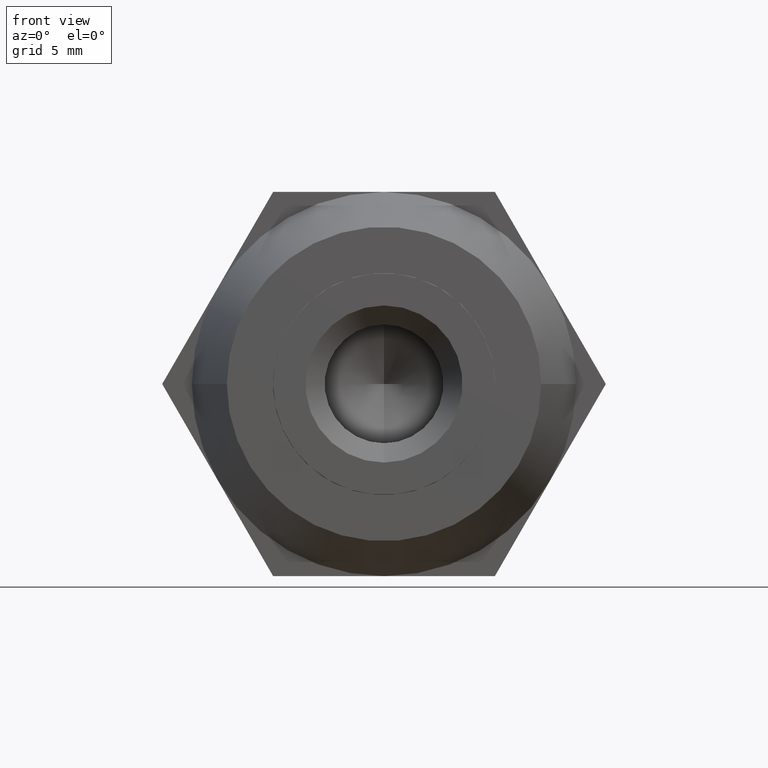
[diagram: clean part render]
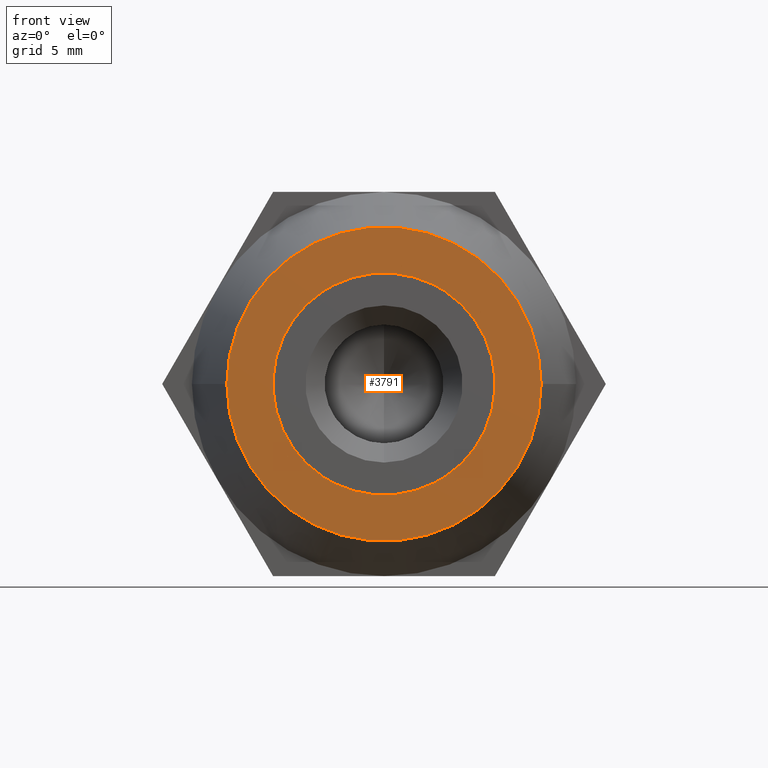
[diagram: same view with one face highlighted and labeled with its STEP entity id]
A machine part, front view. The second image highlights one B-rep face of the part: STEP entity #3791.
In plain terms, the highlighted planar face has unit normal (0, -1, 0).
Its self-contained STEP definition (entity closure, byte-faithful):
#18 = CARTESIAN_POINT ( 'NONE',  ( -2.866252530374845200, -12.50000000000000000, 5.677516748730879700 ) ) ;
#24 = EDGE_CURVE ( 'NONE', #2353, #1094, #2490, .T. ) ;
#61 = CARTESIAN_POINT ( 'NONE',  ( 4.241909236732810000E-015, -12.50000000000000000, 0.0000000000000000000 ) ) ;
#90 = ORIENTED_EDGE ( 'NONE', *, *, #3379, .T. ) ;
#103 = CARTESIAN_POINT ( 'NONE',  ( 4.241909236732810000E-015, -12.50000000000000000, 0.0000000000000000000 ) ) ;
#123 = CIRCLE ( 'NONE', #834, 6.360000000000000300 ) ;
#126 = DIRECTION ( 'NONE',  ( -1.224646799147352000E-016, 1.000000000000000000, -0.0000000000000000000 ) ) ;
#128 = EDGE_CURVE ( 'NONE', #1094, #2252, #2360, .T. ) ;
#129 = EDGE_LOOP ( 'NONE', ( #1279, #1553 ) ) ;
#153 = CARTESIAN_POINT ( 'NONE',  ( 6.349999999999999600, -12.50000000000000000, 3.631579384348879600E-015 ) ) ;
#189 = VERTEX_POINT ( 'NONE', #2188 ) ;
#196 = CARTESIAN_POINT ( 'NONE',  ( 4.241909236732810000E-015, -12.50000000000000000, 0.0000000000000000000 ) ) ;
#212 = CARTESIAN_POINT ( 'NONE',  ( 6.349999999999999600, -12.50000000000000000, 0.3565108693995109900 ) ) ;
#312 = LINE ( 'NONE', #1988, #1150 ) ;
#314 = CIRCLE ( 'NONE', #2002, 6.360000000000000300 ) ;
#316 = DIRECTION ( 'NONE',  ( -1.224646799147352000E-016, 1.000000000000000000, 0.0000000000000000000 ) ) ;
#372 = DIRECTION ( 'NONE',  ( -1.224646799147352000E-016, 1.000000000000000000, -0.0000000000000000000 ) ) ;
#421 = VECTOR ( 'NONE', #2495, 1000.000000000000000 ) ;
#460 = ORIENTED_EDGE ( 'NONE', *, *, #1311, .T. ) ;
#485 = VERTEX_POINT ( 'NONE', #2240 ) ;
#486 = DIRECTION ( 'NONE',  ( -2.365849761790805000E-016, -2.897330338040634900E-032, 1.000000000000000000 ) ) ;
#538 = LINE ( 'NONE', #583, #3513 ) ;
#561 = VERTEX_POINT ( 'NONE', #1717 ) ;
#583 = CARTESIAN_POINT ( 'NONE',  ( -9.924999999999998900, -12.50000000000000000, -1.602146997001215000 ) ) ;
#612 = DIRECTION ( 'NONE',  ( 1.000000000000000000, 0.0000000000000000000, 8.881784197001252300E-016 ) ) ;
#627 = CARTESIAN_POINT ( 'NONE',  ( 4.241909236732810000E-015, -12.50000000000000000, 0.0000000000000000000 ) ) ;
#662 = CARTESIAN_POINT ( 'NONE',  ( 2.866252530374775000, -12.50000000000000000, 5.677516748730930400 ) ) ;
#714 = CIRCLE ( 'NONE', #2518, 6.360000000000000300 ) ;
#745 = EDGE_CURVE ( 'NONE', #2927, #1745, #1898, .T. ) ;
#787 = ORIENTED_EDGE ( 'NONE', *, *, #3128, .T. ) ;
#834 = AXIS2_PLACEMENT_3D ( 'NONE', #61, #372, #612 ) ;
#862 = DIRECTION ( 'NONE',  ( -1.000000000000000000, -1.927470528863119000E-016, 0.0000000000000000000 ) ) ;
#874 = CARTESIAN_POINT ( 'NONE',  ( 6.349999999999999600, -12.50000000000000000, -0.3565108693995079900 ) ) ;
#929 = AXIS2_PLACEMENT_3D ( 'NONE', #2023, #316, #862 ) ;
#995 = AXIS2_PLACEMENT_3D ( 'NONE', #103, #1577, #3632 ) ;
#998 = CARTESIAN_POINT ( 'NONE',  ( 4.241909236732810000E-015, -12.50000000000000000, 0.0000000000000000000 ) ) ;
#1004 = CARTESIAN_POINT ( 'NONE',  ( -8.999999999999996400, -12.50000000000000200, 0.0000000000000000000 ) ) ;
#1025 = CARTESIAN_POINT ( 'NONE',  ( 3.061616997868384600E-015, -12.50000000000000000, 0.0000000000000000000 ) ) ;
#1033 = EDGE_LOOP ( 'NONE', ( #1983, #3580, #3547, #787, #3754, #1663, #2308, #460, #1153, #1515, #90, #1174 ) ) ;
#1092 = DIRECTION ( 'NONE',  ( 1.000000000000000000, 0.0000000000000000000, 0.0000000000000000000 ) ) ;
#1094 = VERTEX_POINT ( 'NONE', #1773 ) ;
#1132 = CARTESIAN_POINT ( 'NONE',  ( -6.349999999999999600, -12.50000000000000000, 0.3565108693993560000 ) ) ;
#1150 = VECTOR ( 'NONE', #2877, 1000.000000000000000 ) ;
#1153 = ORIENTED_EDGE ( 'NONE', *, *, #2712, .T. ) ;
#1174 = ORIENTED_EDGE ( 'NONE', *, *, #3069, .T. ) ;
#1201 = CARTESIAN_POINT ( 'NONE',  ( 4.241909236732810000E-015, -12.50000000000000000, 0.0000000000000000000 ) ) ;
#1224 = DIRECTION ( 'NONE',  ( 1.224646799147352000E-016, -1.000000000000000000, 0.0000000000000000000 ) ) ;
#1279 = ORIENTED_EDGE ( 'NONE', *, *, #1357, .F. ) ;
#1311 = EDGE_CURVE ( 'NONE', #189, #561, #1364, .T. ) ;
#1317 = CIRCLE ( 'NONE', #1363, 6.360000000000000300 ) ;
#1357 = EDGE_CURVE ( 'NONE', #2435, #485, #2555, .T. ) ;
#1363 = AXIS2_PLACEMENT_3D ( 'NONE', #998, #126, #3319 ) ;
#1364 = CIRCLE ( 'NONE', #995, 6.360000000000000300 ) ;
#1504 = VERTEX_POINT ( 'NONE', #2789 ) ;
#1515 = ORIENTED_EDGE ( 'NONE', *, *, #2075, .T. ) ;
#1520 = DIRECTION ( 'NONE',  ( -1.224646799147352000E-016, 1.000000000000000000, -0.0000000000000000000 ) ) ;
#1531 = DIRECTION ( 'NONE',  ( -1.224646799147352000E-016, 1.000000000000000000, -0.0000000000000000000 ) ) ;
#1553 = ORIENTED_EDGE ( 'NONE', *, *, #2139, .F. ) ;
#1577 = DIRECTION ( 'NONE',  ( -1.224646799147352000E-016, 1.000000000000000000, -0.0000000000000000000 ) ) ;
#1604 = FACE_OUTER_BOUND ( 'NONE', #129, .T. ) ;
#1605 = VECTOR ( 'NONE', #3113, 1000.000000000000000 ) ;
#1616 = CARTESIAN_POINT ( 'NONE',  ( -3.483747469625150000, -12.50000000000000000, 5.321005879331489800 ) ) ;
#1619 = CARTESIAN_POINT ( 'NONE',  ( -3.575000000000000200, -12.50000000000000000, -9.396375631061159700 ) ) ;
#1663 = ORIENTED_EDGE ( 'NONE', *, *, #128, .T. ) ;
#1695 = EDGE_CURVE ( 'NONE', #2252, #189, #538, .T. ) ;
#1717 = CARTESIAN_POINT ( 'NONE',  ( -6.349999999999999600, -12.50000000000000000, -0.3565108693993589400 ) ) ;
#1732 = LINE ( 'NONE', #1935, #3101 ) ;
#1745 = VERTEX_POINT ( 'NONE', #874 ) ;
#1773 = CARTESIAN_POINT ( 'NONE',  ( 2.866252530374775000, -12.50000000000000000, -5.677516748730919700 ) ) ;
#1817 = DIRECTION ( 'NONE',  ( 1.000000000000000000, 0.0000000000000000000, 1.776356839400250500E-015 ) ) ;
#1898 = LINE ( 'NONE', #153, #2867 ) ;
#1933 = DIRECTION ( 'NONE',  ( 2.365849761790800100E-016, 2.897330338040634900E-032, -1.000000000000000000 ) ) ;
#1935 = CARTESIAN_POINT ( 'NONE',  ( -6.349999999999999600, -12.50000000000000000, 6.269501868745620100E-016 ) ) ;
#1961 = DIRECTION ( 'NONE',  ( -1.224646799147352000E-016, 1.000000000000000000, -0.0000000000000000000 ) ) ;
#1983 = ORIENTED_EDGE ( 'NONE', *, *, #2809, .T. ) ;
#1988 = CARTESIAN_POINT ( 'NONE',  ( -3.575000000000000200, -12.50000000000000000, 9.396375631061159700 ) ) ;
#2002 = AXIS2_PLACEMENT_3D ( 'NONE', #1201, #1520, #1817 ) ;
#2023 = CARTESIAN_POINT ( 'NONE',  ( 3.061616997868384600E-015, -12.50000000000000000, 0.0000000000000000000 ) ) ;
#2065 = VERTEX_POINT ( 'NONE', #662 ) ;
#2074 = DIRECTION ( 'NONE',  ( 1.000000000000000000, 1.224646799147352000E-016, 0.0000000000000000000 ) ) ;
#2075 = EDGE_CURVE ( 'NONE', #2798, #2254, #1317, .T. ) ;
#2076 = LINE ( 'NONE', #3390, #421 ) ;
#2139 = EDGE_CURVE ( 'NONE', #485, #2435, #3793, .T. ) ;
#2188 = CARTESIAN_POINT ( 'NONE',  ( -3.483747469625164700, -12.50000000000000000, -5.321005879331480100 ) ) ;
#2225 = DIRECTION ( 'NONE',  ( -1.000000000000000000, -1.927470528863119000E-016, 0.0000000000000000000 ) ) ;
#2240 = CARTESIAN_POINT ( 'NONE',  ( 9.000000000000003600, -12.49999999999999800, 1.224646799147353300E-015 ) ) ;
#2252 = VERTEX_POINT ( 'NONE', #3645 ) ;
#2254 = VERTEX_POINT ( 'NONE', #1616 ) ;
#2308 = ORIENTED_EDGE ( 'NONE', *, *, #1695, .T. ) ;
#2353 = VERTEX_POINT ( 'NONE', #3677 ) ;
#2360 = CIRCLE ( 'NONE', #3449, 6.360000000000000300 ) ;
#2377 = PLANE ( 'NONE',  #2644 ) ;
#2435 = VERTEX_POINT ( 'NONE', #1004 ) ;
#2490 = LINE ( 'NONE', #1619, #1605 ) ;
#2495 = DIRECTION ( 'NONE',  ( 0.8660254037844387100, 1.060575238724905700E-016, 0.4999999999999998900 ) ) ;
#2501 = DIRECTION ( 'NONE',  ( -1.224646799147352000E-016, 1.000000000000000000, 0.0000000000000000000 ) ) ;
#2518 = AXIS2_PLACEMENT_3D ( 'NONE', #627, #1531, #3585 ) ;
#2555 = CIRCLE ( 'NONE', #929, 9.000000000000000000 ) ;
#2560 = EDGE_CURVE ( 'NONE', #1504, #2927, #314, .T. ) ;
#2616 = DIRECTION ( 'NONE',  ( -0.8660254037844387100, -1.060575238724905700E-016, 0.4999999999999998900 ) ) ;
#2644 = AXIS2_PLACEMENT_3D ( 'NONE', #3542, #1224, #2074 ) ;
#2712 = EDGE_CURVE ( 'NONE', #561, #2798, #1732, .T. ) ;
#2789 = CARTESIAN_POINT ( 'NONE',  ( 3.483747469625230000, -12.50000000000000000, 5.321005879331440100 ) ) ;
#2798 = VERTEX_POINT ( 'NONE', #1132 ) ;
#2809 = EDGE_CURVE ( 'NONE', #2065, #1504, #312, .T. ) ;
#2867 = VECTOR ( 'NONE', #1933, 1000.000000000000000 ) ;
#2877 = DIRECTION ( 'NONE',  ( 0.8660254037844387100, 1.060575238724905700E-016, -0.4999999999999998900 ) ) ;
#2927 = VERTEX_POINT ( 'NONE', #212 ) ;
#3069 = EDGE_CURVE ( 'NONE', #3712, #2065, #123, .T. ) ;
#3101 = VECTOR ( 'NONE', #486, 1000.000000000000000 ) ;
#3113 = DIRECTION ( 'NONE',  ( -0.8660254037844387100, -1.060575238724905700E-016, -0.4999999999999998900 ) ) ;
#3128 = EDGE_CURVE ( 'NONE', #1745, #2353, #714, .T. ) ;
#3273 = AXIS2_PLACEMENT_3D ( 'NONE', #1025, #2501, #2225 ) ;
#3319 = DIRECTION ( 'NONE',  ( 1.000000000000000000, 0.0000000000000000000, 1.776356839400250500E-015 ) ) ;
#3379 = EDGE_CURVE ( 'NONE', #2254, #3712, #2076, .T. ) ;
#3390 = CARTESIAN_POINT ( 'NONE',  ( -9.924999999999998900, -12.50000000000000000, 1.602146997001209900 ) ) ;
#3402 = FACE_BOUND ( 'NONE', #1033, .T. ) ;
#3449 = AXIS2_PLACEMENT_3D ( 'NONE', #196, #1961, #1092 ) ;
#3513 = VECTOR ( 'NONE', #2616, 1000.000000000000000 ) ;
#3542 = CARTESIAN_POINT ( 'NONE',  ( -9.000000000000000000, -12.50000000000000000, 0.0000000000000000000 ) ) ;
#3547 = ORIENTED_EDGE ( 'NONE', *, *, #745, .T. ) ;
#3580 = ORIENTED_EDGE ( 'NONE', *, *, #2560, .T. ) ;
#3585 = DIRECTION ( 'NONE',  ( 1.000000000000000000, 0.0000000000000000000, 0.0000000000000000000 ) ) ;
#3632 = DIRECTION ( 'NONE',  ( 1.000000000000000000, 0.0000000000000000000, 0.0000000000000000000 ) ) ;
#3645 = CARTESIAN_POINT ( 'NONE',  ( -2.866252530374825200, -12.50000000000000000, -5.677516748730900200 ) ) ;
#3677 = CARTESIAN_POINT ( 'NONE',  ( 3.483747469625230000, -12.50000000000000000, -5.321005879331440100 ) ) ;
#3712 = VERTEX_POINT ( 'NONE', #18 ) ;
#3754 = ORIENTED_EDGE ( 'NONE', *, *, #24, .T. ) ;
#3791 = ADVANCED_FACE ( 'NONE', ( #1604, #3402 ), #2377, .T. ) ;
#3793 = CIRCLE ( 'NONE', #3273, 9.000000000000000000 ) ;